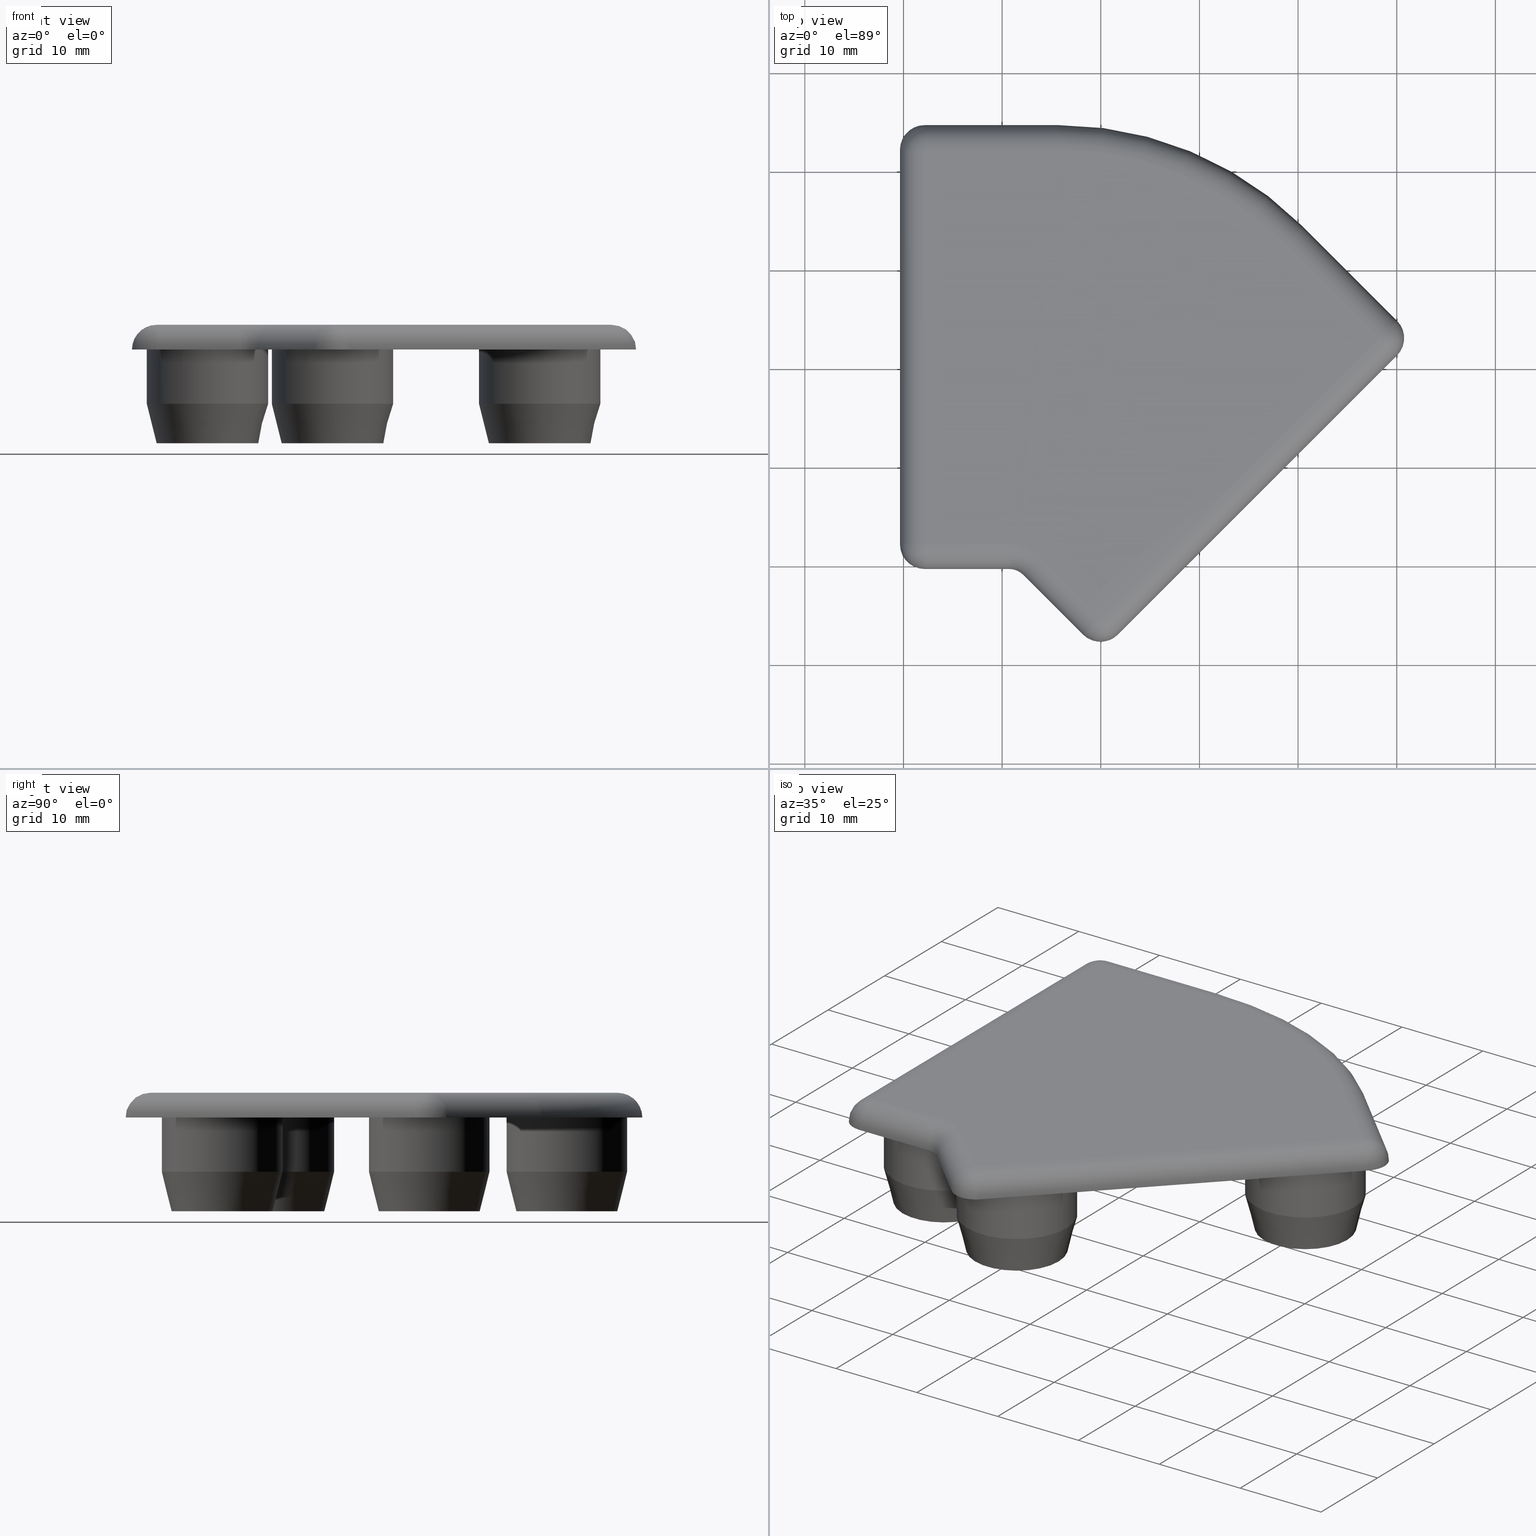
[diagram: canonical four-view strip — front | top / right | iso, engineering-drawing reading convention]
A machine part, canonical four-view strip (front | top / right | iso — engineering-drawing reading convention). The complete STEP part file that produces these views, byte-faithful:
ISO-10303-21;
HEADER;
/* Generated by software containing ST-Developer
 * from STEP Tools, Inc. (www.steptools.com) 
 */

FILE_DESCRIPTION(
/* description */ ('TAPPO PROFILO 45X45 NERO 45\X\B0'),
/* implementation_level */ '2;1');

FILE_NAME(
/* name */ 'C:\\Users\\Tecnico5\\Documents\\DTPTR0000118.stp',
/* time_stamp */ '2020-09-11T08:38:59+02:00',
/* author */ ('tecnico5'),
/* organization */ (''),
/* preprocessor_version */ 'ST-DEVELOPER v17.2',
/* originating_system */ 'Autodesk Inventor 2019',
/* authorisation */ '');

FILE_SCHEMA (('AUTOMOTIVE_DESIGN { 1 0 10303 214 3 1 1 }'));
ENDSEC;

DATA;
#10=MECHANICAL_DESIGN_GEOMETRIC_PRESENTATION_REPRESENTATION('',(#13),#897);
#11=SHAPE_REPRESENTATION_RELATIONSHIP('SRR','None',#904,#12);
#12=ADVANCED_BREP_SHAPE_REPRESENTATION('',(#14),#896);
#13=STYLED_ITEM('',(#913),#14);
#14=MANIFOLD_SOLID_BREP('Solido1',#487);
#15=SPHERICAL_SURFACE('',#567,2.5);
#16=SPHERICAL_SURFACE('',#576,2.5);
#17=SPHERICAL_SURFACE('',#577,2.5);
#18=SPHERICAL_SURFACE('',#578,2.5);
#19=TOROIDAL_SURFACE('',#559,4.5,2.5);
#20=TOROIDAL_SURFACE('',#571,32.5,2.5);
#21=FACE_BOUND('',#90,.T.);
#22=FACE_BOUND('',#94,.T.);
#23=FACE_BOUND('',#98,.T.);
#24=FACE_BOUND('',#102,.T.);
#25=FACE_BOUND('',#108,.T.);
#26=FACE_BOUND('',#109,.T.);
#27=FACE_BOUND('',#110,.T.);
#28=FACE_BOUND('',#111,.T.);
#29=PLANE('',#512);
#30=PLANE('',#519);
#31=PLANE('',#526);
#32=PLANE('',#533);
#33=PLANE('',#543);
#34=PLANE('',#550);
#35=PLANE('',#551);
#36=PLANE('',#552);
#37=PLANE('',#579);
#38=PLANE('',#580);
#39=CYLINDRICAL_SURFACE('',#510,6.15);
#40=CYLINDRICAL_SURFACE('',#517,6.15);
#41=CYLINDRICAL_SURFACE('',#524,6.15);
#42=CYLINDRICAL_SURFACE('',#531,6.15);
#43=CYLINDRICAL_SURFACE('',#535,4.75);
#44=CYLINDRICAL_SURFACE('',#537,4.75);
#45=CYLINDRICAL_SURFACE('',#539,4.75);
#46=CYLINDRICAL_SURFACE('',#541,4.75);
#47=CYLINDRICAL_SURFACE('',#553,2.5);
#48=CYLINDRICAL_SURFACE('',#556,2.5);
#49=CYLINDRICAL_SURFACE('',#562,2.5);
#50=CYLINDRICAL_SURFACE('',#564,2.5);
#51=CYLINDRICAL_SURFACE('',#568,2.5);
#52=CYLINDRICAL_SURFACE('',#574,2.5);
#53=FACE_OUTER_BOUND('',#87,.T.);
#54=FACE_OUTER_BOUND('',#88,.T.);
#55=FACE_OUTER_BOUND('',#89,.T.);
#56=FACE_OUTER_BOUND('',#91,.T.);
#57=FACE_OUTER_BOUND('',#92,.T.);
#58=FACE_OUTER_BOUND('',#93,.T.);
#59=FACE_OUTER_BOUND('',#95,.T.);
#60=FACE_OUTER_BOUND('',#96,.T.);
#61=FACE_OUTER_BOUND('',#97,.T.);
#62=FACE_OUTER_BOUND('',#99,.T.);
#63=FACE_OUTER_BOUND('',#100,.T.);
#64=FACE_OUTER_BOUND('',#101,.T.);
#65=FACE_OUTER_BOUND('',#103,.T.);
#66=FACE_OUTER_BOUND('',#104,.T.);
#67=FACE_OUTER_BOUND('',#105,.T.);
#68=FACE_OUTER_BOUND('',#106,.T.);
#69=FACE_OUTER_BOUND('',#107,.T.);
#70=FACE_OUTER_BOUND('',#112,.T.);
#71=FACE_OUTER_BOUND('',#113,.T.);
#72=FACE_OUTER_BOUND('',#114,.T.);
#73=FACE_OUTER_BOUND('',#115,.T.);
#74=FACE_OUTER_BOUND('',#116,.T.);
#75=FACE_OUTER_BOUND('',#117,.T.);
#76=FACE_OUTER_BOUND('',#118,.T.);
#77=FACE_OUTER_BOUND('',#119,.T.);
#78=FACE_OUTER_BOUND('',#120,.T.);
#79=FACE_OUTER_BOUND('',#121,.T.);
#80=FACE_OUTER_BOUND('',#122,.T.);
#81=FACE_OUTER_BOUND('',#123,.T.);
#82=FACE_OUTER_BOUND('',#124,.T.);
#83=FACE_OUTER_BOUND('',#125,.T.);
#84=FACE_OUTER_BOUND('',#126,.T.);
#85=FACE_OUTER_BOUND('',#127,.T.);
#86=FACE_OUTER_BOUND('',#128,.T.);
#87=EDGE_LOOP('',(#321,#322,#323,#324));
#88=EDGE_LOOP('',(#325,#326,#327,#328));
#89=EDGE_LOOP('',(#329));
#90=EDGE_LOOP('',(#330));
#91=EDGE_LOOP('',(#331,#332,#333,#334));
#92=EDGE_LOOP('',(#335,#336,#337,#338));
#93=EDGE_LOOP('',(#339));
#94=EDGE_LOOP('',(#340));
#95=EDGE_LOOP('',(#341,#342,#343,#344));
#96=EDGE_LOOP('',(#345,#346,#347,#348));
#97=EDGE_LOOP('',(#349));
#98=EDGE_LOOP('',(#350));
#99=EDGE_LOOP('',(#351,#352,#353,#354));
#100=EDGE_LOOP('',(#355,#356,#357,#358));
#101=EDGE_LOOP('',(#359));
#102=EDGE_LOOP('',(#360));
#103=EDGE_LOOP('',(#361,#362,#363,#364));
#104=EDGE_LOOP('',(#365,#366,#367,#368));
#105=EDGE_LOOP('',(#369,#370,#371,#372));
#106=EDGE_LOOP('',(#373,#374,#375,#376));
#107=EDGE_LOOP('',(#377,#378,#379,#380,#381,#382,#383,#384,#385,#386,#387,
#388));
#108=EDGE_LOOP('',(#389));
#109=EDGE_LOOP('',(#390));
#110=EDGE_LOOP('',(#391));
#111=EDGE_LOOP('',(#392));
#112=EDGE_LOOP('',(#393));
#113=EDGE_LOOP('',(#394));
#114=EDGE_LOOP('',(#395));
#115=EDGE_LOOP('',(#396,#397,#398,#399));
#116=EDGE_LOOP('',(#400,#401,#402,#403));
#117=EDGE_LOOP('',(#404,#405,#406,#407));
#118=EDGE_LOOP('',(#408,#409,#410,#411));
#119=EDGE_LOOP('',(#412,#413,#414,#415));
#120=EDGE_LOOP('',(#416,#417,#418));
#121=EDGE_LOOP('',(#419,#420,#421,#422));
#122=EDGE_LOOP('',(#423,#424,#425,#426));
#123=EDGE_LOOP('',(#427,#428,#429,#430));
#124=EDGE_LOOP('',(#431,#432,#433));
#125=EDGE_LOOP('',(#434,#435,#436));
#126=EDGE_LOOP('',(#437,#438,#439));
#127=EDGE_LOOP('',(#440,#441,#442,#443,#444,#445,#446,#447));
#128=EDGE_LOOP('',(#448));
#129=LINE('',#760,#153);
#130=LINE('',#764,#154);
#131=LINE('',#773,#155);
#132=LINE('',#777,#156);
#133=LINE('',#786,#157);
#134=LINE('',#790,#158);
#135=LINE('',#799,#159);
#136=LINE('',#803,#160);
#137=LINE('',#811,#161);
#138=LINE('',#815,#162);
#139=LINE('',#819,#163);
#140=LINE('',#823,#164);
#141=LINE('',#827,#165);
#142=LINE('',#831,#166);
#143=LINE('',#835,#167);
#144=LINE('',#839,#168);
#145=LINE('',#843,#169);
#146=LINE('',#847,#170);
#147=LINE('',#856,#171);
#148=LINE('',#862,#172);
#149=LINE('',#870,#173);
#150=LINE('',#874,#174);
#151=LINE('',#880,#175);
#152=LINE('',#887,#176);
#153=VECTOR('',#587,5.65);
#154=VECTOR('',#592,6.15);
#155=VECTOR('',#603,5.65);
#156=VECTOR('',#608,6.15);
#157=VECTOR('',#619,5.65);
#158=VECTOR('',#624,6.15);
#159=VECTOR('',#635,5.65);
#160=VECTOR('',#640,6.15);
#161=VECTOR('',#651,4.75);
#162=VECTOR('',#656,4.75);
#163=VECTOR('',#661,4.75);
#164=VECTOR('',#666,4.75);
#165=VECTOR('',#669,10.);
#166=VECTOR('',#672,10.);
#167=VECTOR('',#675,10.);
#168=VECTOR('',#678,10.);
#169=VECTOR('',#681,10.);
#170=VECTOR('',#684,10.);
#171=VECTOR('',#697,10.);
#172=VECTOR('',#704,10.);
#173=VECTOR('',#717,10.);
#174=VECTOR('',#722,10.);
#175=VECTOR('',#731,10.);
#176=VECTOR('',#742,10.);
#177=CIRCLE('',#508,6.15);
#178=CIRCLE('',#509,5.15);
#179=CIRCLE('',#511,6.15);
#180=CIRCLE('',#513,4.75);
#181=CIRCLE('',#515,6.15);
#182=CIRCLE('',#516,5.15);
#183=CIRCLE('',#518,6.15);
#184=CIRCLE('',#520,4.75);
#185=CIRCLE('',#522,6.15);
#186=CIRCLE('',#523,5.15);
#187=CIRCLE('',#525,6.15);
#188=CIRCLE('',#527,4.75);
#189=CIRCLE('',#529,6.15);
#190=CIRCLE('',#530,5.15);
#191=CIRCLE('',#532,6.15);
#192=CIRCLE('',#534,4.75);
#193=CIRCLE('',#536,4.75);
#194=CIRCLE('',#538,4.75);
#195=CIRCLE('',#540,4.75);
#196=CIRCLE('',#542,4.75);
#197=CIRCLE('',#544,2.5);
#198=CIRCLE('',#545,2.);
#199=CIRCLE('',#546,2.5);
#200=CIRCLE('',#547,2.5);
#201=CIRCLE('',#548,35.);
#202=CIRCLE('',#549,2.5);
#203=CIRCLE('',#554,2.50000000000016);
#204=CIRCLE('',#555,2.5);
#205=CIRCLE('',#557,2.5);
#206=CIRCLE('',#558,2.5);
#207=CIRCLE('',#560,2.5);
#208=CIRCLE('',#561,4.5);
#209=CIRCLE('',#563,2.5);
#210=CIRCLE('',#565,2.49999999999991);
#211=CIRCLE('',#566,2.5);
#212=CIRCLE('',#569,2.5);
#213=CIRCLE('',#570,2.5);
#214=CIRCLE('',#572,32.5);
#215=CIRCLE('',#573,2.5);
#216=CIRCLE('',#575,2.5);
#217=VERTEX_POINT('',#757);
#218=VERTEX_POINT('',#759);
#219=VERTEX_POINT('',#763);
#220=VERTEX_POINT('',#767);
#221=VERTEX_POINT('',#770);
#222=VERTEX_POINT('',#772);
#223=VERTEX_POINT('',#776);
#224=VERTEX_POINT('',#780);
#225=VERTEX_POINT('',#783);
#226=VERTEX_POINT('',#785);
#227=VERTEX_POINT('',#789);
#228=VERTEX_POINT('',#793);
#229=VERTEX_POINT('',#796);
#230=VERTEX_POINT('',#798);
#231=VERTEX_POINT('',#802);
#232=VERTEX_POINT('',#806);
#233=VERTEX_POINT('',#809);
#234=VERTEX_POINT('',#813);
#235=VERTEX_POINT('',#817);
#236=VERTEX_POINT('',#821);
#237=VERTEX_POINT('',#825);
#238=VERTEX_POINT('',#826);
#239=VERTEX_POINT('',#828);
#240=VERTEX_POINT('',#830);
#241=VERTEX_POINT('',#832);
#242=VERTEX_POINT('',#834);
#243=VERTEX_POINT('',#836);
#244=VERTEX_POINT('',#838);
#245=VERTEX_POINT('',#840);
#246=VERTEX_POINT('',#842);
#247=VERTEX_POINT('',#844);
#248=VERTEX_POINT('',#846);
#249=VERTEX_POINT('',#853);
#250=VERTEX_POINT('',#855);
#251=VERTEX_POINT('',#859);
#252=VERTEX_POINT('',#861);
#253=VERTEX_POINT('',#865);
#254=VERTEX_POINT('',#873);
#255=VERTEX_POINT('',#879);
#256=VERTEX_POINT('',#883);
#257=EDGE_CURVE('',#217,#217,#177,.T.);
#258=EDGE_CURVE('',#217,#218,#129,.T.);
#259=EDGE_CURVE('',#218,#218,#178,.T.);
#260=EDGE_CURVE('',#217,#219,#130,.T.);
#261=EDGE_CURVE('',#219,#219,#179,.T.);
#262=EDGE_CURVE('',#220,#220,#180,.T.);
#263=EDGE_CURVE('',#221,#221,#181,.T.);
#264=EDGE_CURVE('',#221,#222,#131,.T.);
#265=EDGE_CURVE('',#222,#222,#182,.T.);
#266=EDGE_CURVE('',#221,#223,#132,.T.);
#267=EDGE_CURVE('',#223,#223,#183,.T.);
#268=EDGE_CURVE('',#224,#224,#184,.T.);
#269=EDGE_CURVE('',#225,#225,#185,.T.);
#270=EDGE_CURVE('',#225,#226,#133,.T.);
#271=EDGE_CURVE('',#226,#226,#186,.T.);
#272=EDGE_CURVE('',#225,#227,#134,.T.);
#273=EDGE_CURVE('',#227,#227,#187,.T.);
#274=EDGE_CURVE('',#228,#228,#188,.T.);
#275=EDGE_CURVE('',#229,#229,#189,.T.);
#276=EDGE_CURVE('',#229,#230,#135,.T.);
#277=EDGE_CURVE('',#230,#230,#190,.T.);
#278=EDGE_CURVE('',#229,#231,#136,.T.);
#279=EDGE_CURVE('',#231,#231,#191,.T.);
#280=EDGE_CURVE('',#232,#232,#192,.T.);
#281=EDGE_CURVE('',#233,#233,#193,.T.);
#282=EDGE_CURVE('',#233,#224,#137,.T.);
#283=EDGE_CURVE('',#234,#234,#194,.T.);
#284=EDGE_CURVE('',#234,#232,#138,.T.);
#285=EDGE_CURVE('',#235,#235,#195,.T.);
#286=EDGE_CURVE('',#235,#228,#139,.T.);
#287=EDGE_CURVE('',#236,#236,#196,.T.);
#288=EDGE_CURVE('',#236,#220,#140,.T.);
#289=EDGE_CURVE('',#237,#238,#141,.T.);
#290=EDGE_CURVE('',#239,#237,#197,.T.);
#291=EDGE_CURVE('',#240,#239,#142,.T.);
#292=EDGE_CURVE('',#241,#240,#198,.T.);
#293=EDGE_CURVE('',#242,#241,#143,.T.);
#294=EDGE_CURVE('',#243,#242,#199,.T.);
#295=EDGE_CURVE('',#244,#243,#144,.T.);
#296=EDGE_CURVE('',#245,#244,#200,.T.);
#297=EDGE_CURVE('',#246,#245,#145,.T.);
#298=EDGE_CURVE('',#247,#246,#201,.T.);
#299=EDGE_CURVE('',#248,#247,#146,.T.);
#300=EDGE_CURVE('',#238,#248,#202,.T.);
#301=EDGE_CURVE('',#238,#249,#203,.T.);
#302=EDGE_CURVE('',#249,#250,#147,.T.);
#303=EDGE_CURVE('',#250,#237,#204,.T.);
#304=EDGE_CURVE('',#241,#251,#205,.T.);
#305=EDGE_CURVE('',#251,#252,#148,.T.);
#306=EDGE_CURVE('',#252,#242,#206,.T.);
#307=EDGE_CURVE('',#240,#253,#207,.T.);
#308=EDGE_CURVE('',#253,#251,#208,.T.);
#309=EDGE_CURVE('',#239,#250,#209,.T.);
#310=EDGE_CURVE('',#250,#253,#149,.T.);
#311=EDGE_CURVE('',#243,#252,#210,.T.);
#312=EDGE_CURVE('',#252,#254,#150,.T.);
#313=EDGE_CURVE('',#254,#244,#211,.T.);
#314=EDGE_CURVE('',#245,#254,#212,.T.);
#315=EDGE_CURVE('',#254,#255,#151,.T.);
#316=EDGE_CURVE('',#255,#246,#213,.T.);
#317=EDGE_CURVE('',#255,#256,#214,.T.);
#318=EDGE_CURVE('',#256,#247,#215,.T.);
#319=EDGE_CURVE('',#256,#249,#152,.T.);
#320=EDGE_CURVE('',#249,#248,#216,.T.);
#321=ORIENTED_EDGE('',*,*,#257,.T.);
#322=ORIENTED_EDGE('',*,*,#258,.T.);
#323=ORIENTED_EDGE('',*,*,#259,.T.);
#324=ORIENTED_EDGE('',*,*,#258,.F.);
#325=ORIENTED_EDGE('',*,*,#257,.F.);
#326=ORIENTED_EDGE('',*,*,#260,.T.);
#327=ORIENTED_EDGE('',*,*,#261,.F.);
#328=ORIENTED_EDGE('',*,*,#260,.F.);
#329=ORIENTED_EDGE('',*,*,#259,.F.);
#330=ORIENTED_EDGE('',*,*,#262,.T.);
#331=ORIENTED_EDGE('',*,*,#263,.T.);
#332=ORIENTED_EDGE('',*,*,#264,.T.);
#333=ORIENTED_EDGE('',*,*,#265,.T.);
#334=ORIENTED_EDGE('',*,*,#264,.F.);
#335=ORIENTED_EDGE('',*,*,#263,.F.);
#336=ORIENTED_EDGE('',*,*,#266,.T.);
#337=ORIENTED_EDGE('',*,*,#267,.F.);
#338=ORIENTED_EDGE('',*,*,#266,.F.);
#339=ORIENTED_EDGE('',*,*,#265,.F.);
#340=ORIENTED_EDGE('',*,*,#268,.T.);
#341=ORIENTED_EDGE('',*,*,#269,.T.);
#342=ORIENTED_EDGE('',*,*,#270,.T.);
#343=ORIENTED_EDGE('',*,*,#271,.T.);
#344=ORIENTED_EDGE('',*,*,#270,.F.);
#345=ORIENTED_EDGE('',*,*,#269,.F.);
#346=ORIENTED_EDGE('',*,*,#272,.T.);
#347=ORIENTED_EDGE('',*,*,#273,.F.);
#348=ORIENTED_EDGE('',*,*,#272,.F.);
#349=ORIENTED_EDGE('',*,*,#271,.F.);
#350=ORIENTED_EDGE('',*,*,#274,.T.);
#351=ORIENTED_EDGE('',*,*,#275,.T.);
#352=ORIENTED_EDGE('',*,*,#276,.T.);
#353=ORIENTED_EDGE('',*,*,#277,.T.);
#354=ORIENTED_EDGE('',*,*,#276,.F.);
#355=ORIENTED_EDGE('',*,*,#275,.F.);
#356=ORIENTED_EDGE('',*,*,#278,.T.);
#357=ORIENTED_EDGE('',*,*,#279,.F.);
#358=ORIENTED_EDGE('',*,*,#278,.F.);
#359=ORIENTED_EDGE('',*,*,#277,.F.);
#360=ORIENTED_EDGE('',*,*,#280,.T.);
#361=ORIENTED_EDGE('',*,*,#281,.F.);
#362=ORIENTED_EDGE('',*,*,#282,.T.);
#363=ORIENTED_EDGE('',*,*,#268,.F.);
#364=ORIENTED_EDGE('',*,*,#282,.F.);
#365=ORIENTED_EDGE('',*,*,#283,.F.);
#366=ORIENTED_EDGE('',*,*,#284,.T.);
#367=ORIENTED_EDGE('',*,*,#280,.F.);
#368=ORIENTED_EDGE('',*,*,#284,.F.);
#369=ORIENTED_EDGE('',*,*,#285,.F.);
#370=ORIENTED_EDGE('',*,*,#286,.T.);
#371=ORIENTED_EDGE('',*,*,#274,.F.);
#372=ORIENTED_EDGE('',*,*,#286,.F.);
#373=ORIENTED_EDGE('',*,*,#287,.F.);
#374=ORIENTED_EDGE('',*,*,#288,.T.);
#375=ORIENTED_EDGE('',*,*,#262,.F.);
#376=ORIENTED_EDGE('',*,*,#288,.F.);
#377=ORIENTED_EDGE('',*,*,#289,.F.);
#378=ORIENTED_EDGE('',*,*,#290,.F.);
#379=ORIENTED_EDGE('',*,*,#291,.F.);
#380=ORIENTED_EDGE('',*,*,#292,.F.);
#381=ORIENTED_EDGE('',*,*,#293,.F.);
#382=ORIENTED_EDGE('',*,*,#294,.F.);
#383=ORIENTED_EDGE('',*,*,#295,.F.);
#384=ORIENTED_EDGE('',*,*,#296,.F.);
#385=ORIENTED_EDGE('',*,*,#297,.F.);
#386=ORIENTED_EDGE('',*,*,#298,.F.);
#387=ORIENTED_EDGE('',*,*,#299,.F.);
#388=ORIENTED_EDGE('',*,*,#300,.F.);
#389=ORIENTED_EDGE('',*,*,#267,.T.);
#390=ORIENTED_EDGE('',*,*,#279,.T.);
#391=ORIENTED_EDGE('',*,*,#273,.T.);
#392=ORIENTED_EDGE('',*,*,#261,.T.);
#393=ORIENTED_EDGE('',*,*,#287,.T.);
#394=ORIENTED_EDGE('',*,*,#285,.T.);
#395=ORIENTED_EDGE('',*,*,#283,.T.);
#396=ORIENTED_EDGE('',*,*,#301,.T.);
#397=ORIENTED_EDGE('',*,*,#302,.T.);
#398=ORIENTED_EDGE('',*,*,#303,.T.);
#399=ORIENTED_EDGE('',*,*,#289,.T.);
#400=ORIENTED_EDGE('',*,*,#304,.T.);
#401=ORIENTED_EDGE('',*,*,#305,.T.);
#402=ORIENTED_EDGE('',*,*,#306,.T.);
#403=ORIENTED_EDGE('',*,*,#293,.T.);
#404=ORIENTED_EDGE('',*,*,#307,.T.);
#405=ORIENTED_EDGE('',*,*,#308,.T.);
#406=ORIENTED_EDGE('',*,*,#304,.F.);
#407=ORIENTED_EDGE('',*,*,#292,.T.);
#408=ORIENTED_EDGE('',*,*,#309,.T.);
#409=ORIENTED_EDGE('',*,*,#310,.T.);
#410=ORIENTED_EDGE('',*,*,#307,.F.);
#411=ORIENTED_EDGE('',*,*,#291,.T.);
#412=ORIENTED_EDGE('',*,*,#311,.T.);
#413=ORIENTED_EDGE('',*,*,#312,.T.);
#414=ORIENTED_EDGE('',*,*,#313,.T.);
#415=ORIENTED_EDGE('',*,*,#295,.T.);
#416=ORIENTED_EDGE('',*,*,#311,.F.);
#417=ORIENTED_EDGE('',*,*,#294,.T.);
#418=ORIENTED_EDGE('',*,*,#306,.F.);
#419=ORIENTED_EDGE('',*,*,#314,.T.);
#420=ORIENTED_EDGE('',*,*,#315,.T.);
#421=ORIENTED_EDGE('',*,*,#316,.T.);
#422=ORIENTED_EDGE('',*,*,#297,.T.);
#423=ORIENTED_EDGE('',*,*,#316,.F.);
#424=ORIENTED_EDGE('',*,*,#317,.T.);
#425=ORIENTED_EDGE('',*,*,#318,.T.);
#426=ORIENTED_EDGE('',*,*,#298,.T.);
#427=ORIENTED_EDGE('',*,*,#318,.F.);
#428=ORIENTED_EDGE('',*,*,#319,.T.);
#429=ORIENTED_EDGE('',*,*,#320,.T.);
#430=ORIENTED_EDGE('',*,*,#299,.T.);
#431=ORIENTED_EDGE('',*,*,#314,.F.);
#432=ORIENTED_EDGE('',*,*,#296,.T.);
#433=ORIENTED_EDGE('',*,*,#313,.F.);
#434=ORIENTED_EDGE('',*,*,#309,.F.);
#435=ORIENTED_EDGE('',*,*,#290,.T.);
#436=ORIENTED_EDGE('',*,*,#303,.F.);
#437=ORIENTED_EDGE('',*,*,#301,.F.);
#438=ORIENTED_EDGE('',*,*,#300,.T.);
#439=ORIENTED_EDGE('',*,*,#320,.F.);
#440=ORIENTED_EDGE('',*,*,#305,.F.);
#441=ORIENTED_EDGE('',*,*,#308,.F.);
#442=ORIENTED_EDGE('',*,*,#310,.F.);
#443=ORIENTED_EDGE('',*,*,#302,.F.);
#444=ORIENTED_EDGE('',*,*,#319,.F.);
#445=ORIENTED_EDGE('',*,*,#317,.F.);
#446=ORIENTED_EDGE('',*,*,#315,.F.);
#447=ORIENTED_EDGE('',*,*,#312,.F.);
#448=ORIENTED_EDGE('',*,*,#281,.T.);
#449=CONICAL_SURFACE('',#507,5.65,0.244978663126864);
#450=CONICAL_SURFACE('',#514,5.65,0.244978663126864);
#451=CONICAL_SURFACE('',#521,5.65,0.244978663126864);
#452=CONICAL_SURFACE('',#528,5.65,0.244978663126864);
#453=ADVANCED_FACE('',(#53),#449,.T.);
#454=ADVANCED_FACE('',(#54),#39,.T.);
#455=ADVANCED_FACE('',(#55,#21),#29,.F.);
#456=ADVANCED_FACE('',(#56),#450,.T.);
#457=ADVANCED_FACE('',(#57),#40,.T.);
#458=ADVANCED_FACE('',(#58,#22),#30,.F.);
#459=ADVANCED_FACE('',(#59),#451,.T.);
#460=ADVANCED_FACE('',(#60),#41,.T.);
#461=ADVANCED_FACE('',(#61,#23),#31,.F.);
#462=ADVANCED_FACE('',(#62),#452,.T.);
#463=ADVANCED_FACE('',(#63),#42,.T.);
#464=ADVANCED_FACE('',(#64,#24),#32,.F.);
#465=ADVANCED_FACE('',(#65),#43,.F.);
#466=ADVANCED_FACE('',(#66),#44,.F.);
#467=ADVANCED_FACE('',(#67),#45,.F.);
#468=ADVANCED_FACE('',(#68),#46,.F.);
#469=ADVANCED_FACE('',(#69,#25,#26,#27,#28),#33,.F.);
#470=ADVANCED_FACE('',(#70),#34,.F.);
#471=ADVANCED_FACE('',(#71),#35,.F.);
#472=ADVANCED_FACE('',(#72),#36,.F.);
#473=ADVANCED_FACE('',(#73),#47,.T.);
#474=ADVANCED_FACE('',(#74),#48,.T.);
#475=ADVANCED_FACE('',(#75),#19,.T.);
#476=ADVANCED_FACE('',(#76),#49,.T.);
#477=ADVANCED_FACE('',(#77),#50,.T.);
#478=ADVANCED_FACE('',(#78),#15,.T.);
#479=ADVANCED_FACE('',(#79),#51,.T.);
#480=ADVANCED_FACE('',(#80),#20,.T.);
#481=ADVANCED_FACE('',(#81),#52,.T.);
#482=ADVANCED_FACE('',(#82),#16,.T.);
#483=ADVANCED_FACE('',(#83),#17,.T.);
#484=ADVANCED_FACE('',(#84),#18,.T.);
#485=ADVANCED_FACE('',(#85),#37,.T.);
#486=ADVANCED_FACE('',(#86),#38,.F.);
#487=CLOSED_SHELL('',(#453,#454,#455,#456,#457,#458,#459,#460,#461,#462,
#463,#464,#465,#466,#467,#468,#469,#470,#471,#472,#473,#474,#475,#476,#477,
#478,#479,#480,#481,#482,#483,#484,#485,#486));
#488=DERIVED_UNIT_ELEMENT(#490,1.);
#489=DERIVED_UNIT_ELEMENT(#899,3.);
#490=(
MASS_UNIT()
NAMED_UNIT(*)
SI_UNIT($,.GRAM.)
);
#491=DERIVED_UNIT((#488,#489));
#492=MEASURE_REPRESENTATION_ITEM('density measure',
POSITIVE_RATIO_MEASURE(1.13),#491);
#493=PROPERTY_DEFINITION_REPRESENTATION(#498,#495);
#494=PROPERTY_DEFINITION_REPRESENTATION(#499,#496);
#495=REPRESENTATION('material name',(#497),#896);
#496=REPRESENTATION('density',(#492),#896);
#497=DESCRIPTIVE_REPRESENTATION_ITEM('Nylon nero','Nylon nero');
#498=PROPERTY_DEFINITION('material property','material name',#906);
#499=PROPERTY_DEFINITION('material property','density of part',#906);
#500=DATE_TIME_ROLE('creation_date');
#501=APPLIED_DATE_AND_TIME_ASSIGNMENT(#502,#500,(#906));
#502=DATE_AND_TIME(#503,#504);
#503=CALENDAR_DATE(2007,8,5);
#504=LOCAL_TIME(15,24,26.,#505);
#505=COORDINATED_UNIVERSAL_TIME_OFFSET(0,0,.BEHIND.);
#506=AXIS2_PLACEMENT_3D('placement',#755,#581,#582);
#507=AXIS2_PLACEMENT_3D('',#756,#583,#584);
#508=AXIS2_PLACEMENT_3D('',#758,#585,#586);
#509=AXIS2_PLACEMENT_3D('',#761,#588,#589);
#510=AXIS2_PLACEMENT_3D('',#762,#590,#591);
#511=AXIS2_PLACEMENT_3D('',#765,#593,#594);
#512=AXIS2_PLACEMENT_3D('',#766,#595,#596);
#513=AXIS2_PLACEMENT_3D('',#768,#597,#598);
#514=AXIS2_PLACEMENT_3D('',#769,#599,#600);
#515=AXIS2_PLACEMENT_3D('',#771,#601,#602);
#516=AXIS2_PLACEMENT_3D('',#774,#604,#605);
#517=AXIS2_PLACEMENT_3D('',#775,#606,#607);
#518=AXIS2_PLACEMENT_3D('',#778,#609,#610);
#519=AXIS2_PLACEMENT_3D('',#779,#611,#612);
#520=AXIS2_PLACEMENT_3D('',#781,#613,#614);
#521=AXIS2_PLACEMENT_3D('',#782,#615,#616);
#522=AXIS2_PLACEMENT_3D('',#784,#617,#618);
#523=AXIS2_PLACEMENT_3D('',#787,#620,#621);
#524=AXIS2_PLACEMENT_3D('',#788,#622,#623);
#525=AXIS2_PLACEMENT_3D('',#791,#625,#626);
#526=AXIS2_PLACEMENT_3D('',#792,#627,#628);
#527=AXIS2_PLACEMENT_3D('',#794,#629,#630);
#528=AXIS2_PLACEMENT_3D('',#795,#631,#632);
#529=AXIS2_PLACEMENT_3D('',#797,#633,#634);
#530=AXIS2_PLACEMENT_3D('',#800,#636,#637);
#531=AXIS2_PLACEMENT_3D('',#801,#638,#639);
#532=AXIS2_PLACEMENT_3D('',#804,#641,#642);
#533=AXIS2_PLACEMENT_3D('',#805,#643,#644);
#534=AXIS2_PLACEMENT_3D('',#807,#645,#646);
#535=AXIS2_PLACEMENT_3D('',#808,#647,#648);
#536=AXIS2_PLACEMENT_3D('',#810,#649,#650);
#537=AXIS2_PLACEMENT_3D('',#812,#652,#653);
#538=AXIS2_PLACEMENT_3D('',#814,#654,#655);
#539=AXIS2_PLACEMENT_3D('',#816,#657,#658);
#540=AXIS2_PLACEMENT_3D('',#818,#659,#660);
#541=AXIS2_PLACEMENT_3D('',#820,#662,#663);
#542=AXIS2_PLACEMENT_3D('',#822,#664,#665);
#543=AXIS2_PLACEMENT_3D('',#824,#667,#668);
#544=AXIS2_PLACEMENT_3D('',#829,#670,#671);
#545=AXIS2_PLACEMENT_3D('',#833,#673,#674);
#546=AXIS2_PLACEMENT_3D('',#837,#676,#677);
#547=AXIS2_PLACEMENT_3D('',#841,#679,#680);
#548=AXIS2_PLACEMENT_3D('',#845,#682,#683);
#549=AXIS2_PLACEMENT_3D('',#848,#685,#686);
#550=AXIS2_PLACEMENT_3D('',#849,#687,#688);
#551=AXIS2_PLACEMENT_3D('',#850,#689,#690);
#552=AXIS2_PLACEMENT_3D('',#851,#691,#692);
#553=AXIS2_PLACEMENT_3D('',#852,#693,#694);
#554=AXIS2_PLACEMENT_3D('',#854,#695,#696);
#555=AXIS2_PLACEMENT_3D('',#857,#698,#699);
#556=AXIS2_PLACEMENT_3D('',#858,#700,#701);
#557=AXIS2_PLACEMENT_3D('',#860,#702,#703);
#558=AXIS2_PLACEMENT_3D('',#863,#705,#706);
#559=AXIS2_PLACEMENT_3D('',#864,#707,#708);
#560=AXIS2_PLACEMENT_3D('',#866,#709,#710);
#561=AXIS2_PLACEMENT_3D('',#867,#711,#712);
#562=AXIS2_PLACEMENT_3D('',#868,#713,#714);
#563=AXIS2_PLACEMENT_3D('',#869,#715,#716);
#564=AXIS2_PLACEMENT_3D('',#871,#718,#719);
#565=AXIS2_PLACEMENT_3D('',#872,#720,#721);
#566=AXIS2_PLACEMENT_3D('',#875,#723,#724);
#567=AXIS2_PLACEMENT_3D('',#876,#725,#726);
#568=AXIS2_PLACEMENT_3D('',#877,#727,#728);
#569=AXIS2_PLACEMENT_3D('',#878,#729,#730);
#570=AXIS2_PLACEMENT_3D('',#881,#732,#733);
#571=AXIS2_PLACEMENT_3D('',#882,#734,#735);
#572=AXIS2_PLACEMENT_3D('',#884,#736,#737);
#573=AXIS2_PLACEMENT_3D('',#885,#738,#739);
#574=AXIS2_PLACEMENT_3D('',#886,#740,#741);
#575=AXIS2_PLACEMENT_3D('',#888,#743,#744);
#576=AXIS2_PLACEMENT_3D('',#889,#745,#746);
#577=AXIS2_PLACEMENT_3D('',#890,#747,#748);
#578=AXIS2_PLACEMENT_3D('',#891,#749,#750);
#579=AXIS2_PLACEMENT_3D('',#892,#751,#752);
#580=AXIS2_PLACEMENT_3D('',#893,#753,#754);
#581=DIRECTION('axis',(0.,0.,1.));
#582=DIRECTION('refdir',(1.,0.,0.));
#583=DIRECTION('center_axis',(0.,0.,1.));
#584=DIRECTION('ref_axis',(1.,0.,0.));
#585=DIRECTION('center_axis',(0.,0.,-1.));
#586=DIRECTION('ref_axis',(1.,0.,0.));
#587=DIRECTION('',(0.242535625036333,2.97020476879948E-17,-0.970142500145332));
#588=DIRECTION('center_axis',(0.,0.,1.));
#589=DIRECTION('ref_axis',(1.,0.,0.));
#590=DIRECTION('center_axis',(0.,0.,-1.));
#591=DIRECTION('ref_axis',(1.,0.,0.));
#592=DIRECTION('',(0.,0.,1.));
#593=DIRECTION('center_axis',(0.,0.,1.));
#594=DIRECTION('ref_axis',(1.,0.,0.));
#595=DIRECTION('center_axis',(0.,0.,1.));
#596=DIRECTION('ref_axis',(1.,0.,0.));
#597=DIRECTION('center_axis',(0.,0.,1.));
#598=DIRECTION('ref_axis',(1.,0.,0.));
#599=DIRECTION('center_axis',(0.,0.,1.));
#600=DIRECTION('ref_axis',(1.,0.,0.));
#601=DIRECTION('center_axis',(0.,0.,-1.));
#602=DIRECTION('ref_axis',(1.,0.,0.));
#603=DIRECTION('',(0.242535625036333,2.97020476879948E-17,-0.970142500145332));
#604=DIRECTION('center_axis',(0.,0.,1.));
#605=DIRECTION('ref_axis',(1.,0.,0.));
#606=DIRECTION('center_axis',(0.,0.,-1.));
#607=DIRECTION('ref_axis',(1.,0.,0.));
#608=DIRECTION('',(0.,0.,1.));
#609=DIRECTION('center_axis',(0.,0.,1.));
#610=DIRECTION('ref_axis',(1.,0.,0.));
#611=DIRECTION('center_axis',(0.,0.,1.));
#612=DIRECTION('ref_axis',(1.,0.,0.));
#613=DIRECTION('center_axis',(0.,0.,1.));
#614=DIRECTION('ref_axis',(1.,0.,0.));
#615=DIRECTION('center_axis',(0.,0.,1.));
#616=DIRECTION('ref_axis',(1.,0.,0.));
#617=DIRECTION('center_axis',(0.,0.,-1.));
#618=DIRECTION('ref_axis',(1.,0.,0.));
#619=DIRECTION('',(0.242535625036333,2.97020476879948E-17,-0.970142500145332));
#620=DIRECTION('center_axis',(0.,0.,1.));
#621=DIRECTION('ref_axis',(1.,0.,0.));
#622=DIRECTION('center_axis',(0.,0.,-1.));
#623=DIRECTION('ref_axis',(1.,0.,0.));
#624=DIRECTION('',(0.,0.,1.));
#625=DIRECTION('center_axis',(0.,0.,1.));
#626=DIRECTION('ref_axis',(1.,0.,0.));
#627=DIRECTION('center_axis',(0.,0.,1.));
#628=DIRECTION('ref_axis',(1.,0.,0.));
#629=DIRECTION('center_axis',(0.,0.,1.));
#630=DIRECTION('ref_axis',(1.,0.,0.));
#631=DIRECTION('center_axis',(0.,0.,1.));
#632=DIRECTION('ref_axis',(1.,0.,0.));
#633=DIRECTION('center_axis',(0.,0.,-1.));
#634=DIRECTION('ref_axis',(1.,0.,0.));
#635=DIRECTION('',(0.242535625036333,2.97020476879948E-17,-0.970142500145332));
#636=DIRECTION('center_axis',(0.,0.,1.));
#637=DIRECTION('ref_axis',(1.,0.,0.));
#638=DIRECTION('center_axis',(0.,0.,-1.));
#639=DIRECTION('ref_axis',(1.,0.,0.));
#640=DIRECTION('',(0.,0.,1.));
#641=DIRECTION('center_axis',(0.,0.,1.));
#642=DIRECTION('ref_axis',(1.,0.,0.));
#643=DIRECTION('center_axis',(0.,0.,1.));
#644=DIRECTION('ref_axis',(1.,0.,0.));
#645=DIRECTION('center_axis',(0.,0.,1.));
#646=DIRECTION('ref_axis',(1.,0.,0.));
#647=DIRECTION('center_axis',(0.,0.,-1.));
#648=DIRECTION('ref_axis',(1.,0.,0.));
#649=DIRECTION('center_axis',(0.,0.,-1.));
#650=DIRECTION('ref_axis',(1.,0.,0.));
#651=DIRECTION('',(0.,0.,-1.));
#652=DIRECTION('center_axis',(0.,0.,-1.));
#653=DIRECTION('ref_axis',(1.,0.,0.));
#654=DIRECTION('center_axis',(0.,0.,-1.));
#655=DIRECTION('ref_axis',(1.,0.,0.));
#656=DIRECTION('',(0.,0.,-1.));
#657=DIRECTION('center_axis',(0.,0.,-1.));
#658=DIRECTION('ref_axis',(1.,0.,0.));
#659=DIRECTION('center_axis',(0.,0.,-1.));
#660=DIRECTION('ref_axis',(1.,0.,0.));
#661=DIRECTION('',(0.,0.,-1.));
#662=DIRECTION('center_axis',(0.,0.,-1.));
#663=DIRECTION('ref_axis',(1.,0.,0.));
#664=DIRECTION('center_axis',(0.,0.,-1.));
#665=DIRECTION('ref_axis',(1.,0.,0.));
#666=DIRECTION('',(0.,0.,-1.));
#667=DIRECTION('center_axis',(0.,0.,1.));
#668=DIRECTION('ref_axis',(1.,0.,0.));
#669=DIRECTION('',(0.707106781194539,0.707106781178556,0.));
#670=DIRECTION('center_axis',(0.,0.,1.));
#671=DIRECTION('ref_axis',(-0.707106781194545,-0.70710678117855,0.));
#672=DIRECTION('',(0.707106781178558,-0.707106781194537,0.));
#673=DIRECTION('center_axis',(0.,0.,-1.));
#674=DIRECTION('ref_axis',(-0.707106781194554,-0.707106781178541,0.));
#675=DIRECTION('',(1.,1.82235322564765E-12,0.));
#676=DIRECTION('center_axis',(0.,0.,1.));
#677=DIRECTION('ref_axis',(-1.,-1.73372427525469E-12,0.));
#678=DIRECTION('',(1.79927757281055E-12,-1.,0.));
#679=DIRECTION('center_axis',(0.,0.,1.));
#680=DIRECTION('ref_axis',(-1.80477854883068E-12,1.,0.));
#681=DIRECTION('',(-1.,-1.81589351842762E-12,0.));
#682=DIRECTION('center_axis',(0.,0.,1.));
#683=DIRECTION('ref_axis',(0.707106781194539,0.707106781178556,0.));
#684=DIRECTION('',(-0.707106781178559,0.707106781194536,0.));
#685=DIRECTION('center_axis',(0.,0.,1.));
#686=DIRECTION('ref_axis',(0.707106781178518,-0.707106781194577,0.));
#687=DIRECTION('center_axis',(0.,0.,1.));
#688=DIRECTION('ref_axis',(1.,0.,0.));
#689=DIRECTION('center_axis',(0.,0.,1.));
#690=DIRECTION('ref_axis',(1.,0.,0.));
#691=DIRECTION('center_axis',(0.,0.,1.));
#692=DIRECTION('ref_axis',(1.,0.,0.));
#693=DIRECTION('center_axis',(-0.707106781194539,-0.707106781178556,0.));
#694=DIRECTION('ref_axis',(0.499999999994349,-0.500000000005651,0.707106781186548));
#695=DIRECTION('center_axis',(-0.707106781194539,-0.707106781178556,0.));
#696=DIRECTION('ref_axis',(0.707106781178556,-0.707106781194539,0.));
#697=DIRECTION('',(-0.707106781194539,-0.707106781178556,0.));
#698=DIRECTION('center_axis',(0.70710678119454,0.707106781178555,0.));
#699=DIRECTION('ref_axis',(0.,0.,1.));
#700=DIRECTION('center_axis',(-1.,-1.82235322564765E-12,0.));
#701=DIRECTION('ref_axis',(1.28857488084177E-12,-0.707106781186548,0.707106781186547));
#702=DIRECTION('center_axis',(-1.,-1.82254211722466E-12,0.));
#703=DIRECTION('ref_axis',(1.82254211722466E-12,-1.,0.));
#704=DIRECTION('',(-1.,-1.82235322564765E-12,0.));
#705=DIRECTION('center_axis',(1.,1.82254211722466E-12,0.));
#706=DIRECTION('ref_axis',(0.,0.,1.));
#707=DIRECTION('center_axis',(0.,0.,1.));
#708=DIRECTION('ref_axis',(1.,0.,0.));
#709=DIRECTION('center_axis',(-0.707106781178541,0.707106781194554,0.));
#710=DIRECTION('ref_axis',(-0.707106781194554,-0.707106781178541,0.));
#711=DIRECTION('center_axis',(0.,0.,1.));
#712=DIRECTION('ref_axis',(0.382683432369484,0.923879532509467,0.));
#713=DIRECTION('center_axis',(-0.707106781178558,0.707106781194537,0.));
#714=DIRECTION('ref_axis',(-0.50000000000565,-0.499999999994351,0.707106781186547));
#715=DIRECTION('center_axis',(-0.707106781178557,0.707106781194538,0.));
#716=DIRECTION('ref_axis',(-0.707106781194538,-0.707106781178557,0.));
#717=DIRECTION('',(-0.707106781178558,0.707106781194537,0.));
#718=DIRECTION('center_axis',(-1.79927757281055E-12,1.,0.));
#719=DIRECTION('ref_axis',(-0.707106781186547,-1.27240292851733E-12,0.707106781186547));
#720=DIRECTION('center_axis',(-1.79944947831252E-12,1.,0.));
#721=DIRECTION('ref_axis',(-1.,-1.79944947831252E-12,0.));
#722=DIRECTION('',(-1.79927757281055E-12,1.,0.));
#723=DIRECTION('center_axis',(1.79944947831236E-12,-1.,0.));
#724=DIRECTION('ref_axis',(0.,0.,1.));
#725=DIRECTION('center_axis',(0.,0.,1.));
#726=DIRECTION('ref_axis',(1.,0.,0.));
#727=DIRECTION('center_axis',(1.,1.81589351842762E-12,0.));
#728=DIRECTION('ref_axis',(-1.28402161271159E-12,0.707106781186547,0.707106781186547));
#729=DIRECTION('center_axis',(1.,1.81543668986706E-12,0.));
#730=DIRECTION('ref_axis',(-1.81543668986706E-12,1.,0.));
#731=DIRECTION('',(1.,1.81589351842762E-12,0.));
#732=DIRECTION('center_axis',(-1.,-1.81588077907691E-12,0.));
#733=DIRECTION('ref_axis',(0.,0.,1.));
#734=DIRECTION('center_axis',(0.,0.,-1.));
#735=DIRECTION('ref_axis',(-1.,0.,0.));
#736=DIRECTION('center_axis',(0.,0.,-1.));
#737=DIRECTION('ref_axis',(0.382683432369477,0.92387953250947,0.));
#738=DIRECTION('center_axis',(-0.707106781178556,0.707106781194539,0.));
#739=DIRECTION('ref_axis',(0.,0.,1.));
#740=DIRECTION('center_axis',(0.707106781178559,-0.707106781194536,0.));
#741=DIRECTION('ref_axis',(0.500000000005649,0.499999999994351,0.707106781186548));
#742=DIRECTION('',(0.707106781178559,-0.707106781194536,0.));
#743=DIRECTION('center_axis',(-0.70710678117856,0.707106781194535,0.));
#744=DIRECTION('ref_axis',(0.,0.,1.));
#745=DIRECTION('center_axis',(0.,0.,1.));
#746=DIRECTION('ref_axis',(1.,0.,0.));
#747=DIRECTION('center_axis',(6.10622663543836E-17,0.,1.));
#748=DIRECTION('ref_axis',(1.,0.,0.));
#749=DIRECTION('center_axis',(0.,0.,1.));
#750=DIRECTION('ref_axis',(1.,0.,0.));
#751=DIRECTION('center_axis',(0.,0.,1.));
#752=DIRECTION('ref_axis',(1.,0.,0.));
#753=DIRECTION('center_axis',(0.,0.,1.));
#754=DIRECTION('ref_axis',(1.,0.,0.));
#755=CARTESIAN_POINT('',(0.,0.,0.));
#756=CARTESIAN_POINT('Origin',(-12.7045683265362,-12.7458896825157,-7.5));
#757=CARTESIAN_POINT('',(-18.8545683265362,-12.7458896825157,-5.5));
#758=CARTESIAN_POINT('Origin',(-12.7045683265362,-12.7458896825157,-5.5));
#759=CARTESIAN_POINT('',(-17.8545683265362,-12.7458896825157,-9.5));
#760=CARTESIAN_POINT('',(-18.3545683265362,-12.7458896825157,-7.5));
#761=CARTESIAN_POINT('Origin',(-12.7045683265362,-12.7458896825157,-9.5));
#762=CARTESIAN_POINT('Origin',(-12.7045683265362,-12.7458896825157,0.));
#763=CARTESIAN_POINT('',(-18.8545683265362,-12.7458896825157,0.));
#764=CARTESIAN_POINT('',(-18.8545683265362,-12.7458896825157,0.));
#765=CARTESIAN_POINT('Origin',(-12.7045683265362,-12.7458896825157,0.));
#766=CARTESIAN_POINT('Origin',(-12.7045683265362,-12.7458896825157,-9.5));
#767=CARTESIAN_POINT('',(-17.4545683265362,-12.7458896825157,-9.5));
#768=CARTESIAN_POINT('Origin',(-12.7045683265362,-12.7458896825157,-9.5));
#769=CARTESIAN_POINT('Origin',(-0.0292186111917286,-17.9961914425038,-7.5));
#770=CARTESIAN_POINT('',(-6.17921861119173,-17.9961914425038,-5.5));
#771=CARTESIAN_POINT('Origin',(-0.0292186111917286,-17.9961914425038,-5.5));
#772=CARTESIAN_POINT('',(-5.17921861119173,-17.9961914425038,-9.5));
#773=CARTESIAN_POINT('',(-5.67921861119173,-17.9961914425038,-7.5));
#774=CARTESIAN_POINT('Origin',(-0.0292186111917286,-17.9961914425038,-9.5));
#775=CARTESIAN_POINT('Origin',(-0.0292186111917286,-17.9961914425038,0.));
#776=CARTESIAN_POINT('',(-6.17921861119173,-17.9961914425038,0.));
#777=CARTESIAN_POINT('',(-6.17921861119173,-17.9961914425038,0.));
#778=CARTESIAN_POINT('Origin',(-0.0292186111917286,-17.9961914425038,0.));
#779=CARTESIAN_POINT('Origin',(-0.0292186111917286,-17.9961914425038,-9.5));
#780=CARTESIAN_POINT('',(-4.77921861119173,-17.9961914425038,-9.5));
#781=CARTESIAN_POINT('Origin',(-0.0292186111917286,-17.9961914425038,-9.5));
#782=CARTESIAN_POINT('Origin',(-12.7045683265898,16.9541103174842,-7.5));
#783=CARTESIAN_POINT('',(-18.8545683265898,16.9541103174842,-5.5));
#784=CARTESIAN_POINT('Origin',(-12.7045683265898,16.9541103174842,-5.5));
#785=CARTESIAN_POINT('',(-17.8545683265898,16.9541103174842,-9.5));
#786=CARTESIAN_POINT('',(-18.3545683265898,16.9541103174842,-7.5));
#787=CARTESIAN_POINT('Origin',(-12.7045683265898,16.9541103174842,-9.5));
#788=CARTESIAN_POINT('Origin',(-12.7045683265898,16.9541103174842,0.));
#789=CARTESIAN_POINT('',(-18.8545683265898,16.9541103174842,0.));
#790=CARTESIAN_POINT('',(-18.8545683265898,16.9541103174842,0.));
#791=CARTESIAN_POINT('Origin',(-12.7045683265898,16.9541103174842,0.));
#792=CARTESIAN_POINT('Origin',(-12.7045683265898,16.9541103174842,-9.5));
#793=CARTESIAN_POINT('',(-17.4545683265898,16.9541103174842,-9.5));
#794=CARTESIAN_POINT('Origin',(-12.7045683265898,16.9541103174842,-9.5));
#795=CARTESIAN_POINT('Origin',(20.9718527902861,3.00487995849924,-7.5));
#796=CARTESIAN_POINT('',(14.8218527902861,3.00487995849924,-5.5));
#797=CARTESIAN_POINT('Origin',(20.9718527902861,3.00487995849924,-5.5));
#798=CARTESIAN_POINT('',(15.8218527902861,3.00487995849924,-9.5));
#799=CARTESIAN_POINT('',(15.3218527902861,3.00487995849924,-7.5));
#800=CARTESIAN_POINT('Origin',(20.9718527902861,3.00487995849924,-9.5));
#801=CARTESIAN_POINT('Origin',(20.9718527902861,3.00487995849924,0.));
#802=CARTESIAN_POINT('',(14.8218527902861,3.00487995849924,0.));
#803=CARTESIAN_POINT('',(14.8218527902861,3.00487995849924,0.));
#804=CARTESIAN_POINT('Origin',(20.9718527902861,3.00487995849924,0.));
#805=CARTESIAN_POINT('Origin',(20.9718527902861,3.00487995849924,-9.5));
#806=CARTESIAN_POINT('',(16.2218527902861,3.00487995849924,-9.5));
#807=CARTESIAN_POINT('Origin',(20.9718527902861,3.00487995849924,-9.5));
#808=CARTESIAN_POINT('Origin',(-0.0292186111917286,-17.9961914425038,0.));
#809=CARTESIAN_POINT('',(-4.77921861119173,-17.9961914425038,0.));
#810=CARTESIAN_POINT('Origin',(-0.0292186111917286,-17.9961914425038,0.));
#811=CARTESIAN_POINT('',(-4.77921861119173,-17.9961914425038,0.));
#812=CARTESIAN_POINT('Origin',(20.9718527902861,3.00487995849924,0.));
#813=CARTESIAN_POINT('',(16.2218527902861,3.00487995849924,0.));
#814=CARTESIAN_POINT('Origin',(20.9718527902861,3.00487995849924,0.));
#815=CARTESIAN_POINT('',(16.2218527902861,3.00487995849924,0.));
#816=CARTESIAN_POINT('Origin',(-12.7045683265898,16.9541103174842,0.));
#817=CARTESIAN_POINT('',(-17.4545683265898,16.9541103174842,0.));
#818=CARTESIAN_POINT('Origin',(-12.7045683265898,16.9541103174842,0.));
#819=CARTESIAN_POINT('',(-17.4545683265898,16.9541103174842,0.));
#820=CARTESIAN_POINT('Origin',(-12.7045683265362,-12.7458896825157,0.));
#821=CARTESIAN_POINT('',(-17.4545683265362,-12.7458896825157,0.));
#822=CARTESIAN_POINT('Origin',(-12.7045683265362,-12.7458896825157,0.));
#823=CARTESIAN_POINT('',(-17.4545683265362,-12.7458896825157,0.));
#824=CARTESIAN_POINT('Origin',(10.5911302819278,-7.61546788210903,0.));
#825=CARTESIAN_POINT('',(1.7385483416723,-27.0471582417117,0.));
#826=CARTESIAN_POINT('',(30.0228195894538,1.2371130054305,0.));
#827=CARTESIAN_POINT('',(12.5926374330154,-16.1930691506137,0.));
#828=CARTESIAN_POINT('',(-1.7969855642604,-27.0471582416716,0.));
#829=CARTESIAN_POINT('Origin',(-0.0292186112740822,-25.2793912887253,0.));
#830=CARTESIAN_POINT('',(-7.86246768564258,-20.9816761201524,0.));
#831=CARTESIAN_POINT('',(-7.86246768564258,-20.9816761201524,0.));
#832=CARTESIAN_POINT('',(-9.27668124803532,-20.3958896825095,0.));
#833=CARTESIAN_POINT('Origin',(-9.27668124803169,-22.3958896825095,0.));
#834=CARTESIAN_POINT('',(-17.8545683265224,-20.3958896825251,0.));
#835=CARTESIAN_POINT('',(-17.8545683265224,-20.3958896825251,0.));
#836=CARTESIAN_POINT('',(-20.354568326527,-17.8958896825294,0.));
#837=CARTESIAN_POINT('Origin',(-17.854568326527,-17.8958896825251,0.));
#838=CARTESIAN_POINT('',(-20.3545683265991,22.1041103174704,0.));
#839=CARTESIAN_POINT('',(-20.3545683265714,6.75411031748727,0.));
#840=CARTESIAN_POINT('',(-17.8545683266037,24.6041103174749,0.));
#841=CARTESIAN_POINT('Origin',(-17.8545683265991,22.1041103174749,0.));
#842=CARTESIAN_POINT('',(-4.30611849954726,24.6041103174995,0.));
#843=CARTESIAN_POINT('',(-4.30611849954726,24.6041103174995,0.));
#844=CARTESIAN_POINT('',(20.4426188423247,14.3528476587489,0.));
#845=CARTESIAN_POINT('Origin',(-4.30611849948413,-10.3958896825005,0.));
#846=CARTESIAN_POINT('',(30.0228195894938,4.77264691136336,0.));
#847=CARTESIAN_POINT('',(30.0228195894938,4.77264691136336,0.));
#848=CARTESIAN_POINT('Origin',(28.2550526365075,3.00487995841699,0.));
#849=CARTESIAN_POINT('Origin',(10.5911302819278,-7.61546788210903,0.));
#850=CARTESIAN_POINT('Origin',(10.5911302819278,-7.61546788210903,0.));
#851=CARTESIAN_POINT('Origin',(10.5911302819278,-7.61546788210903,0.));
#852=CARTESIAN_POINT('Origin',(15.756940541969,-9.49323213583888,0.));
#853=CARTESIAN_POINT('',(28.2550526365075,3.00487995841696,2.5));
#854=CARTESIAN_POINT('Origin',(28.2550526365073,3.00487995841696,0.));
#855=CARTESIAN_POINT('',(-0.0292186112741888,-25.2793912887252,2.5));
#856=CARTESIAN_POINT('',(15.756940541969,-9.49323213583888,2.5));
#857=CARTESIAN_POINT('Origin',(-0.0292186112741888,-25.2793912887252,0.));
#858=CARTESIAN_POINT('Origin',(0.657224516953312,-17.8958896824914,0.));
#859=CARTESIAN_POINT('',(-9.27668124803987,-17.8958896825095,2.5));
#860=CARTESIAN_POINT('Origin',(-9.27668124803987,-17.8958896825095,0.));
#861=CARTESIAN_POINT('',(-17.854568326527,-17.8958896825251,2.5));
#862=CARTESIAN_POINT('',(0.657224516953312,-17.8958896824914,2.5));
#863=CARTESIAN_POINT('Origin',(-17.854568326527,-17.8958896825251,0.));
#864=CARTESIAN_POINT('Origin',(-9.27668124803169,-22.3958896825095,0.));
#865=CARTESIAN_POINT('',(-6.0947007326562,-19.213909167206,2.5));
#866=CARTESIAN_POINT('Origin',(-6.0947007326562,-19.213909167206,0.));
#867=CARTESIAN_POINT('Origin',(-9.27668124803169,-22.3958896825095,2.5));
#868=CARTESIAN_POINT('Origin',(-1.79011223968766,-23.5184976602719,0.));
#869=CARTESIAN_POINT('Origin',(-0.02921861127405,-25.2793912887253,0.));
#870=CARTESIAN_POINT('',(-1.79011223968766,-23.5184976602719,2.5));
#871=CARTESIAN_POINT('Origin',(-17.8545683265501,-5.08067878233761,0.));
#872=CARTESIAN_POINT('Origin',(-17.854568326527,-17.8958896825249,0.));
#873=CARTESIAN_POINT('',(-17.854568326599,22.1041103174749,2.5));
#874=CARTESIAN_POINT('',(-17.8545683265501,-5.08067878233761,2.5));
#875=CARTESIAN_POINT('Origin',(-17.854568326599,22.1041103174749,0.));
#876=CARTESIAN_POINT('Origin',(-17.854568326527,-17.8958896825251,0.));
#877=CARTESIAN_POINT('Origin',(-3.63171902236266,22.1041103175007,0.));
#878=CARTESIAN_POINT('Origin',(-17.8545683265991,22.1041103174749,0.));
#879=CARTESIAN_POINT('',(-4.30611849954272,22.1041103174995,2.5));
#880=CARTESIAN_POINT('',(-3.63171902236266,22.1041103175007,2.5));
#881=CARTESIAN_POINT('Origin',(-4.30611849954272,22.1041103174995,0.));
#882=CARTESIAN_POINT('Origin',(-4.30611849948413,-10.3958896825005,0.));
#883=CARTESIAN_POINT('',(18.6748518893384,12.5850807058026,2.5));
#884=CARTESIAN_POINT('Origin',(-4.30611849948413,-10.3958896825005,2.5));
#885=CARTESIAN_POINT('Origin',(18.6748518893384,12.5850807058026,0.));
#886=CARTESIAN_POINT('Origin',(21.7040586345093,9.5558739605632,0.));
#887=CARTESIAN_POINT('',(21.7040586345093,9.5558739605632,2.5));
#888=CARTESIAN_POINT('Origin',(28.2550526365075,3.00487995841696,0.));
#889=CARTESIAN_POINT('Origin',(-17.8545683265991,22.1041103174749,0.));
#890=CARTESIAN_POINT('Origin',(-0.0292186112740822,-25.2793912887253,0.));
#891=CARTESIAN_POINT('Origin',(28.2550526365075,3.00487995841699,0.));
#892=CARTESIAN_POINT('Origin',(10.5911302819278,-7.61546788210902,2.5));
#893=CARTESIAN_POINT('Origin',(10.5911302819278,-7.61546788210903,0.));
#894=UNCERTAINTY_MEASURE_WITH_UNIT(LENGTH_MEASURE(0.01),#898,
'DISTANCE_ACCURACY_VALUE',
'Maximum model space distance between geometric entities at asserted c
onnectivities');
#895=UNCERTAINTY_MEASURE_WITH_UNIT(LENGTH_MEASURE(0.01),#898,
'DISTANCE_ACCURACY_VALUE',
'Maximum model space distance between geometric entities at asserted c
onnectivities');
#896=(
GEOMETRIC_REPRESENTATION_CONTEXT(3)
GLOBAL_UNCERTAINTY_ASSIGNED_CONTEXT((#894))
GLOBAL_UNIT_ASSIGNED_CONTEXT((#898,#900,#901))
REPRESENTATION_CONTEXT('','3D')
);
#897=(
GEOMETRIC_REPRESENTATION_CONTEXT(3)
GLOBAL_UNCERTAINTY_ASSIGNED_CONTEXT((#895))
GLOBAL_UNIT_ASSIGNED_CONTEXT((#898,#900,#901))
REPRESENTATION_CONTEXT('','3D')
);
#898=(
LENGTH_UNIT()
NAMED_UNIT(*)
SI_UNIT(.MILLI.,.METRE.)
);
#899=(
LENGTH_UNIT()
NAMED_UNIT(*)
SI_UNIT(.CENTI.,.METRE.)
);
#900=(
NAMED_UNIT(*)
PLANE_ANGLE_UNIT()
SI_UNIT($,.RADIAN.)
);
#901=(
NAMED_UNIT(*)
SI_UNIT($,.STERADIAN.)
SOLID_ANGLE_UNIT()
);
#902=SHAPE_DEFINITION_REPRESENTATION(#903,#904);
#903=PRODUCT_DEFINITION_SHAPE('',$,#906);
#904=SHAPE_REPRESENTATION('',(#506),#896);
#905=PRODUCT_DEFINITION_CONTEXT('part definition',#910,'design');
#906=PRODUCT_DEFINITION('2062','2062',#907,#905);
#907=PRODUCT_DEFINITION_FORMATION('A',$,#912);
#908=PRODUCT_RELATED_PRODUCT_CATEGORY('2062','2062',(#912));
#909=APPLICATION_PROTOCOL_DEFINITION('international standard',
'automotive_design',2009,#910);
#910=APPLICATION_CONTEXT(
'Core Data for Automotive Mechanical Design Process');
#911=PRODUCT_CONTEXT('part definition',#910,'mechanical');
#912=PRODUCT('2062','2062','TAPPO PROFILO 45X45 NERO 45\X\B0',(#911));
#913=PRESENTATION_STYLE_ASSIGNMENT((#914));
#914=SURFACE_STYLE_USAGE(.BOTH.,#917);
#915=SURFACE_STYLE_RENDERING_WITH_PROPERTIES($,#921,(#916));
#916=SURFACE_STYLE_TRANSPARENT(0.);
#917=SURFACE_SIDE_STYLE('',(#918,#915));
#918=SURFACE_STYLE_FILL_AREA(#919);
#919=FILL_AREA_STYLE('',(#920));
#920=FILL_AREA_STYLE_COLOUR('',#921);
#921=COLOUR_RGB('',0.258823529411765,0.258823529411765,0.258823529411765);
ENDSEC;
END-ISO-10303-21;
